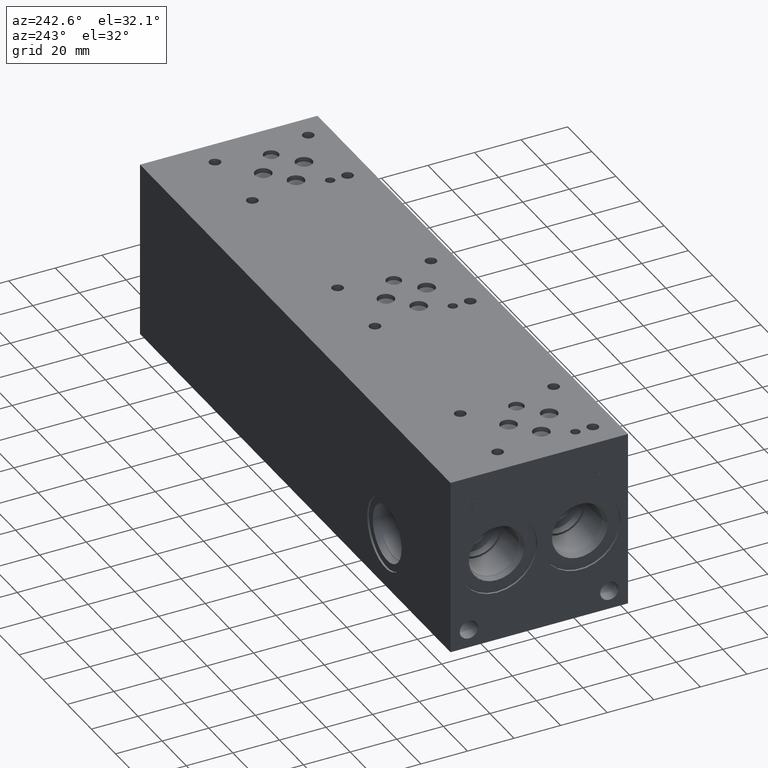
[diagram: clean part render]
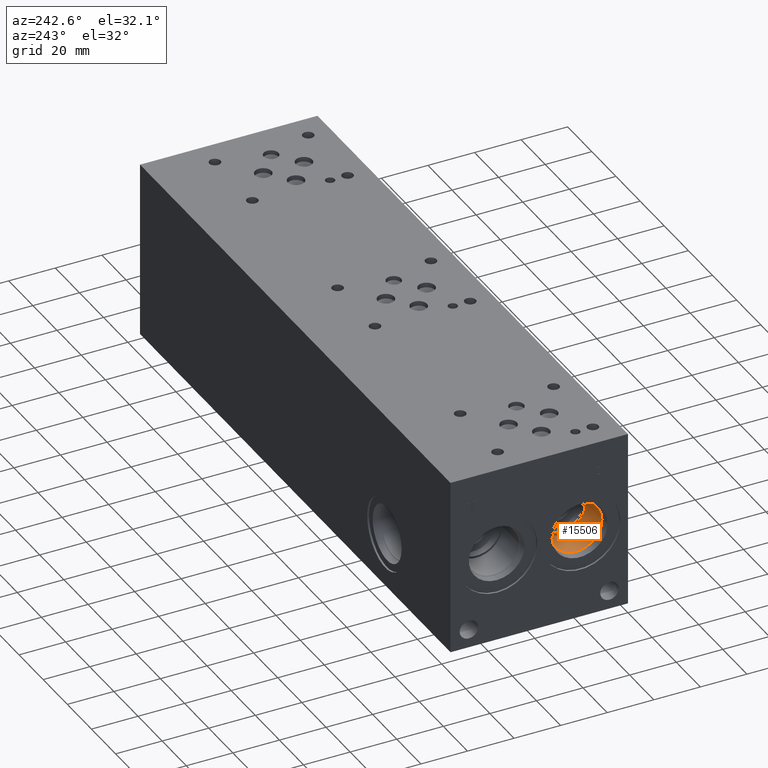
[diagram: same view with one face highlighted and labeled with its STEP entity id]
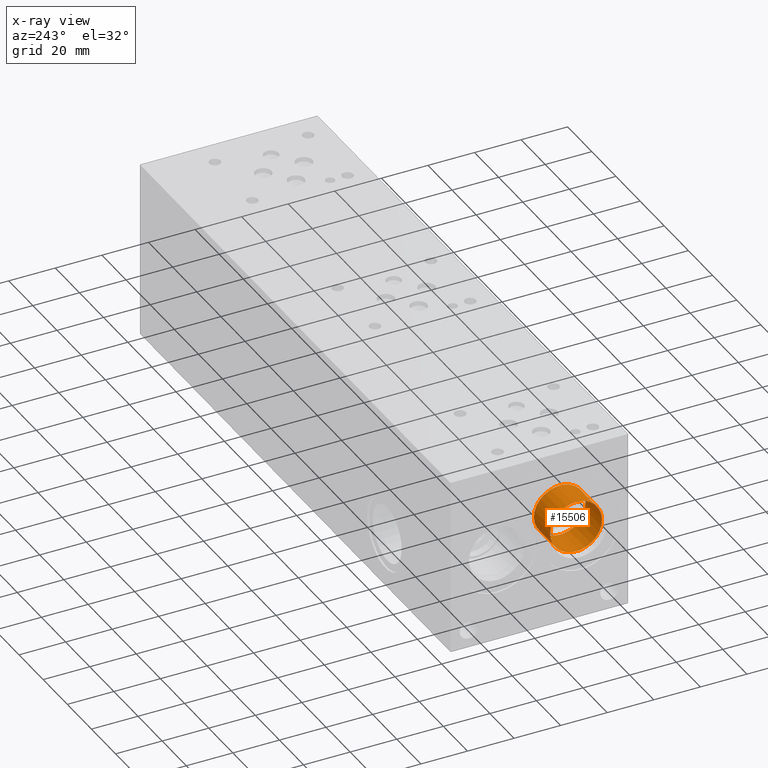
[diagram: x-ray of the same camera — body ghosted, the highlighted face saturated]
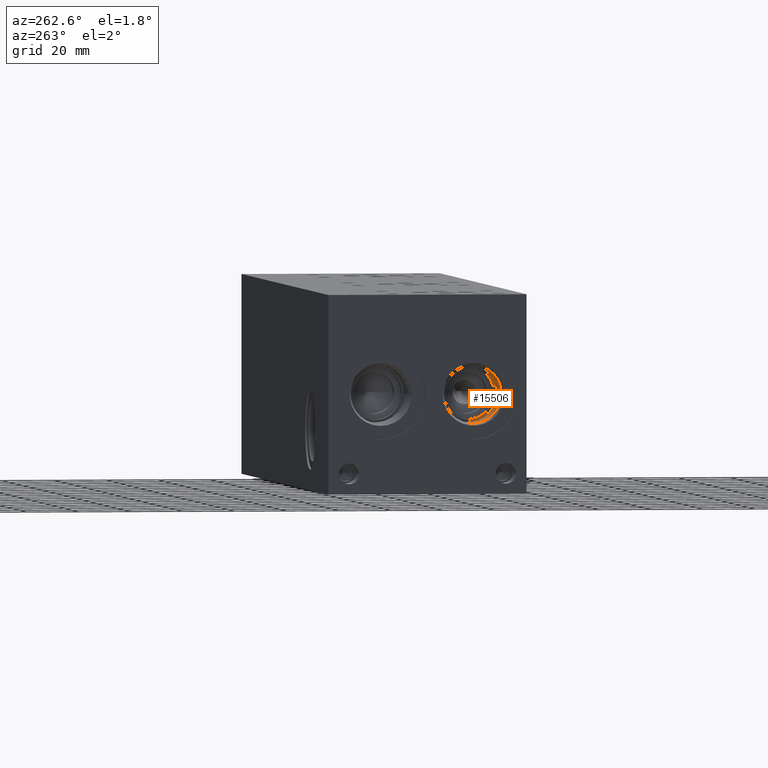
[diagram: same view with one face highlighted and labeled with its STEP entity id]
A machine part, auxiliary view. The second image highlights one B-rep face of the part: STEP entity #15506.
The next image is the same camera in x-ray: the body ghosted, the highlighted face saturated — about 0% of this face is hidden behind the body in this view.
A second angle (auxiliary view) of the same face is appended — the face is thin or edge-on in the first view.
In plain terms, the highlighted cylindrical surface (bore or boss wall) has radius 11.1125 mm, axis along (-1, 0, 0).
Its self-contained STEP definition (entity closure, byte-faithful):
#210=CYLINDRICAL_SURFACE('',#16548,11.1125);
#628=CIRCLE('',#16545,11.1125);
#629=CIRCLE('',#16546,11.1125);
#631=CIRCLE('',#16549,11.1125);
#2157=FACE_OUTER_BOUND('',#3070,.T.);
#3070=EDGE_LOOP('',(#13596,#13597,#13598,#13599,#13600));
#4444=LINE('',#26955,#5779);
#5779=VECTOR('',#19927,11.1125);
#7260=VERTEX_POINT('',#26946);
#7261=VERTEX_POINT('',#26947);
#7263=VERTEX_POINT('',#26953);
#9406=EDGE_CURVE('',#7260,#7261,#628,.T.);
#9407=EDGE_CURVE('',#7261,#7260,#629,.T.);
#9409=EDGE_CURVE('',#7263,#7263,#631,.T.);
#9410=EDGE_CURVE('',#7263,#7261,#4444,.T.);
#13596=ORIENTED_EDGE('',*,*,#9409,.F.);
#13597=ORIENTED_EDGE('',*,*,#9410,.T.);
#13598=ORIENTED_EDGE('',*,*,#9406,.F.);
#13599=ORIENTED_EDGE('',*,*,#9407,.F.);
#13600=ORIENTED_EDGE('',*,*,#9410,.F.);
#15506=ADVANCED_FACE('',(#2157),#210,.F.);
#16545=AXIS2_PLACEMENT_3D('',#26948,#19917,#19918);
#16546=AXIS2_PLACEMENT_3D('',#26949,#19919,#19920);
#16548=AXIS2_PLACEMENT_3D('',#26952,#19923,#19924);
#16549=AXIS2_PLACEMENT_3D('',#26954,#19925,#19926);
#19917=DIRECTION('center_axis',(-1.,0.,0.));
#19918=DIRECTION('ref_axis',(0.,1.,0.));
#19919=DIRECTION('center_axis',(-1.,0.,0.));
#19920=DIRECTION('ref_axis',(0.,1.,0.));
#19923=DIRECTION('center_axis',(-1.,0.,0.));
#19924=DIRECTION('ref_axis',(0.,1.,0.));
#19925=DIRECTION('center_axis',(1.,0.,0.));
#19926=DIRECTION('ref_axis',(0.,1.,0.));
#19927=DIRECTION('',(1.,0.,0.));
#26946=CARTESIAN_POINT('',(17.4498,31.3563,38.1));
#26947=CARTESIAN_POINT('',(17.4498,9.1313,38.1));
#26948=CARTESIAN_POINT('Origin',(17.4498,20.2438,38.1));
#26949=CARTESIAN_POINT('Origin',(17.4498,20.2438,38.1));
#26952=CARTESIAN_POINT('Origin',(8.7249,20.2438,38.1));
#26953=CARTESIAN_POINT('',(3.91738498690423,9.1313,38.1));
#26954=CARTESIAN_POINT('Origin',(3.91738498690423,20.2438,38.1));
#26955=CARTESIAN_POINT('',(8.7249,9.1313,38.1));